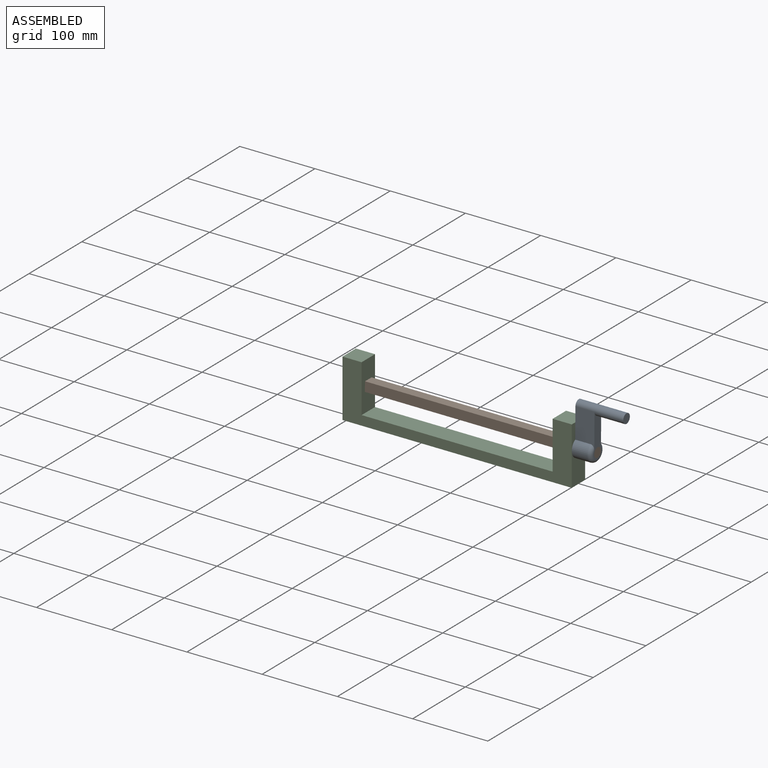
[diagram: assembled view]
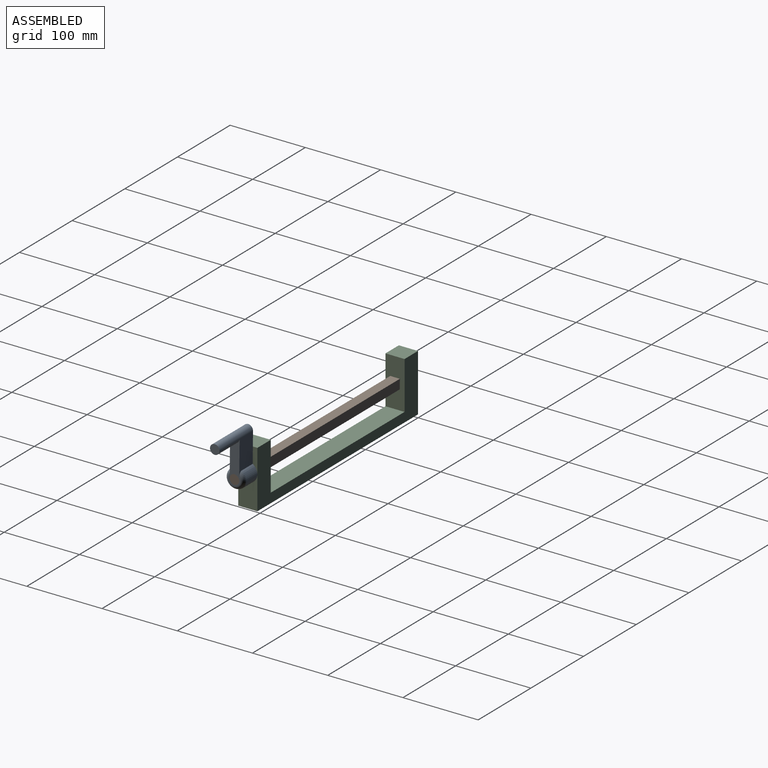
[diagram: assembled view, second angle]
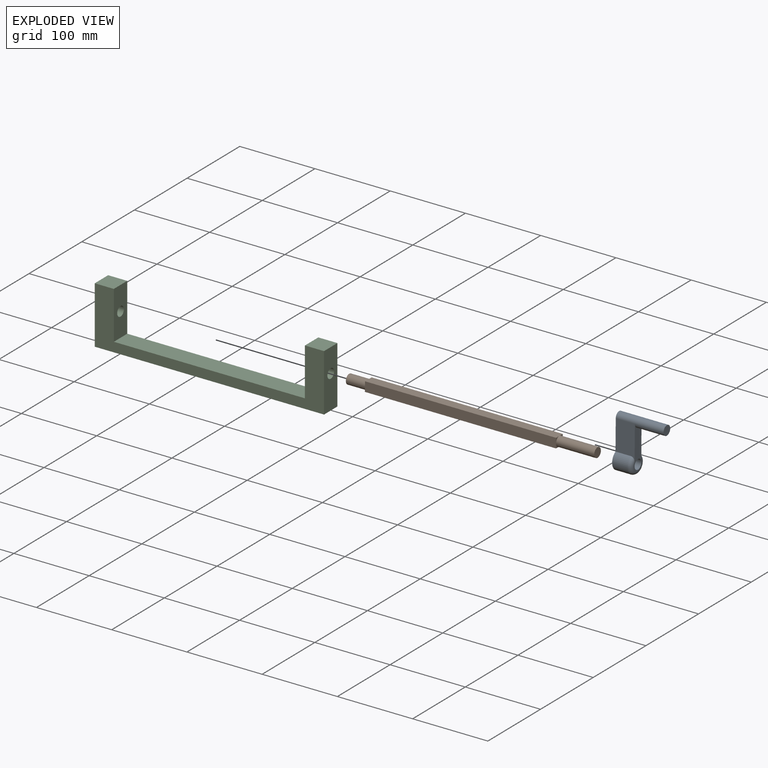
[diagram: exploded view]
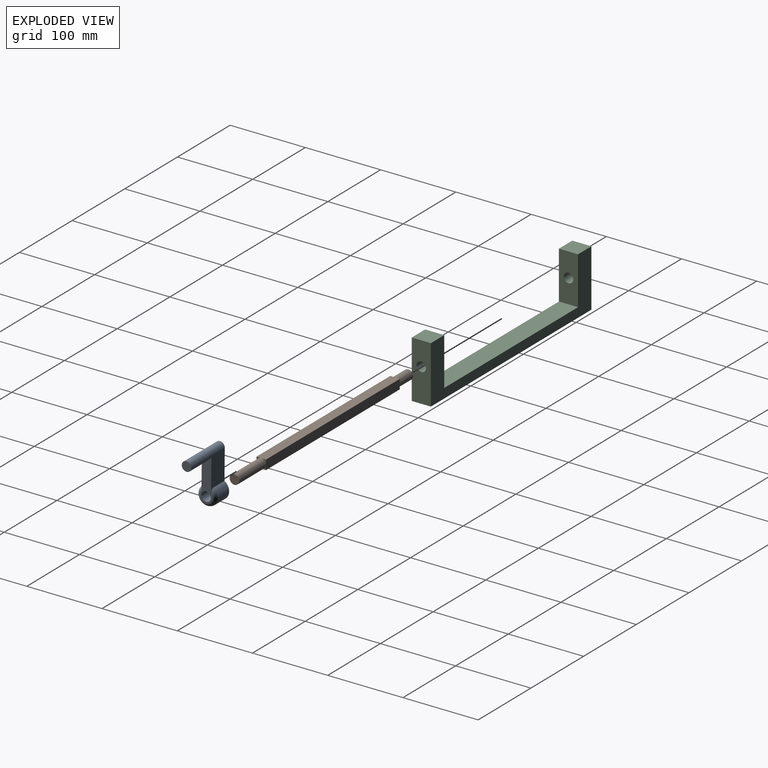
[diagram: exploded view, second angle]
ASSEMBLY  parts=3 mates=2
PART A: 9 faces, bbox 63.5x27.5x70.9 mm
  f0: plane 46.59x25.4mm, normal (0,-1,0), area 1017.6mm2, adj f1,f3,f5,f6,f8
  f1: cylinder r=12.7mm len=25.4mm, axis (-1,0,0), area 1351.2mm2, adj f0,f2,f6,f8
  f2: plane 46.59x25.4mm, normal (0,1,0), area 1017.6mm2, adj f1,f3,f5,f6,f8
  f3: cylinder r=6.35mm len=63.5mm, axis (-1,0,0), area 2026.8mm2, adj f0,f2,f5,f6,f7
  f4: cylinder r=6.35mm len=25.4mm, axis (-1,0,0), area 1013.4mm2, adj f5,f6
  f5: plane 58.42x15.24mm, normal (1,0,0), area 553.6mm2, adj f0,f2,f3,f4,f8
  f6: plane 69.85x25.4mm, normal (-1,0,0), area 934.2mm2, adj f0,f1,f2,f3,f4
  f7: plane 12.7x12.7mm, normal (1,0,0), area 126.7mm2, adj f3
  f8: torus R=7.62mm, axis (1,0,0), area 435mm2, adj f0,f1,f2,f5
PART B: 16 faces, bbox 12.7x12.7x330.2 mm
  f0: plane 254x12.7mm, normal (0,1,0), area 3225.8mm2, adj f1,f3,f7,f9,f12,f13
  f1: plane 254x12.7mm, normal (-1,0,0), area 3225.8mm2, adj f0,f2,f5,f9,f10,f13
  f2: plane 254x12.7mm, normal (0,-1,0), area 3225.8mm2, adj f1,f3,f5,f8,f10,f14
  f3: plane 254x12.7mm, normal (1,0,0), area 3225.8mm2, adj f0,f2,f7,f8,f12,f14
  f4: plane 12.7x12.7mm, normal (0,0,-1), area 126.7mm2, adj f11
  f5: plane 6.35x6.35mm, normal (0,0,1), area 8.7mm2, adj f1,f2,f6
  f6: cylinder r=6.35mm len=50.8mm, axis (0,0,1), area 2026.8mm2, adj f5,f7,f8,f9,f15
  f7: plane 6.35x6.35mm, normal (0,0,1), area 8.7mm2, adj f0,f3,f6
  f8: plane 6.35x6.35mm, normal (0,0,1), area 8.7mm2, adj f2,f3,f6
  f9: plane 6.35x6.35mm, normal (0,0,1), area 8.7mm2, adj f0,f1,f6
  f10: plane 6.35x6.35mm, normal (0,0,-1), area 8.7mm2, adj f1,f2,f11
  f11: cylinder r=6.35mm len=25.4mm, axis (0,0,-1), area 1013.4mm2, adj f4,f10,f12,f13,f14
  f12: plane 6.35x6.35mm, normal (0,0,-1), area 8.7mm2, adj f0,f3,f11
  f13: plane 6.35x6.35mm, normal (0,0,-1), area 8.7mm2, adj f0,f1,f11
  f14: plane 6.35x6.35mm, normal (0,0,-1), area 8.7mm2, adj f2,f3,f11
  f15: plane 12.7x12.7mm, normal (0,0,1), area 126.7mm2, adj f6
PART C: 12 faces, bbox 304.8x25.4x76.2 mm
  f0: plane 304.8x25.4mm, normal (0,0,-1), area 7741.9mm2, adj f1,f7,f8,f9
  f1: plane 76.2x25.4mm, normal (1,0,0), area 1808.8mm2, adj f0,f2,f8,f9,f11
  f2: plane 25.4x25.4mm, normal (0,0,1), area 645.2mm2, adj f1,f3,f8,f9
  f3: plane 63.5x25.4mm, normal (-1,0,0), area 1486.2mm2, adj f2,f4,f8,f9,f11
  f4: plane 254x25.4mm, normal (0,0,1), area 6451.6mm2, adj f3,f5,f8,f9
  f5: plane 63.5x25.4mm, normal (1,0,0), area 1486.2mm2, adj f4,f6,f8,f9,f10
  f6: plane 25.4x25.4mm, normal (0,0,1), area 645.2mm2, adj f5,f7,f8,f9
  f7: plane 76.2x25.4mm, normal (-1,0,0), area 1808.8mm2, adj f0,f6,f8,f9,f10
  f8: plane 304.8x76.2mm, normal (0,-1,0), area 7096.8mm2, adj f0,f1,f2,f3,f4,f5,f6,f7
  f9: plane 304.8x76.2mm, normal (0,1,0), area 7096.8mm2, adj f0,f1,f2,f3,f4,f5,f6,f7
  f10: cylinder r=6.35mm len=25.4mm, axis (1,0,0), area 1013.4mm2, adj f5,f7
  f11: cylinder r=6.35mm len=25.4mm, axis (1,0,0), area 1013.4mm2, adj f1,f3
PLACE A rot(axis=(-1,0,0),0.6deg) t=(207.87,89.28,92.23)mm
PLACE B rot(axis=(-0.01,1,-0.01),90deg) t=(-96.93,83,98.65)mm
PLACE C t=(-71.53,101.98,47.78)mm fixed
MATE fastened A.f4 <-> B.f6  axis (1,0,0) through (233.27,89.28,92.23)mm
MATE revolute B.f6 <-> C.f10  axis (-1,0,0) through (-96.93,89.28,92.23)mm
